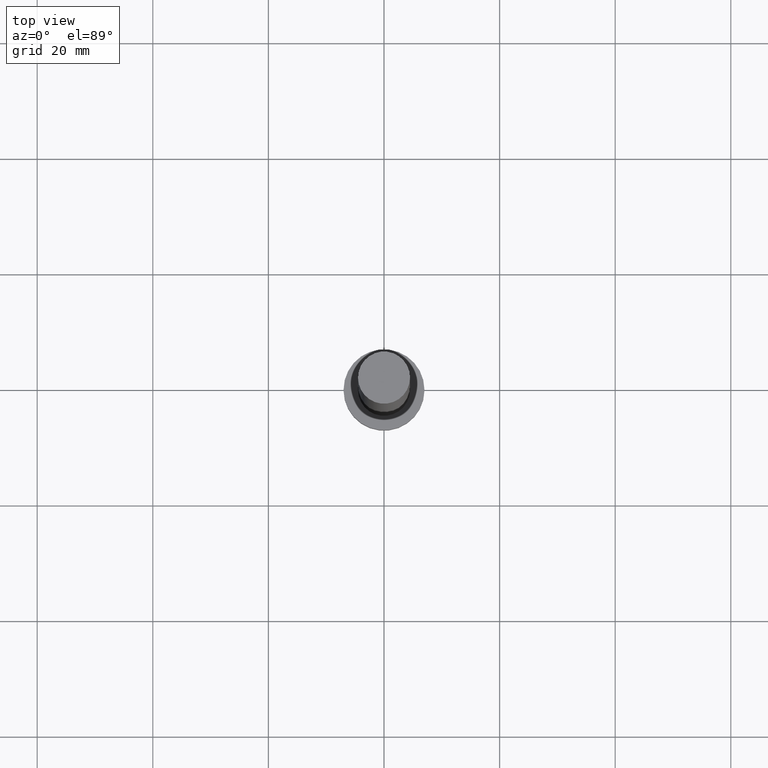
[diagram: clean part render]
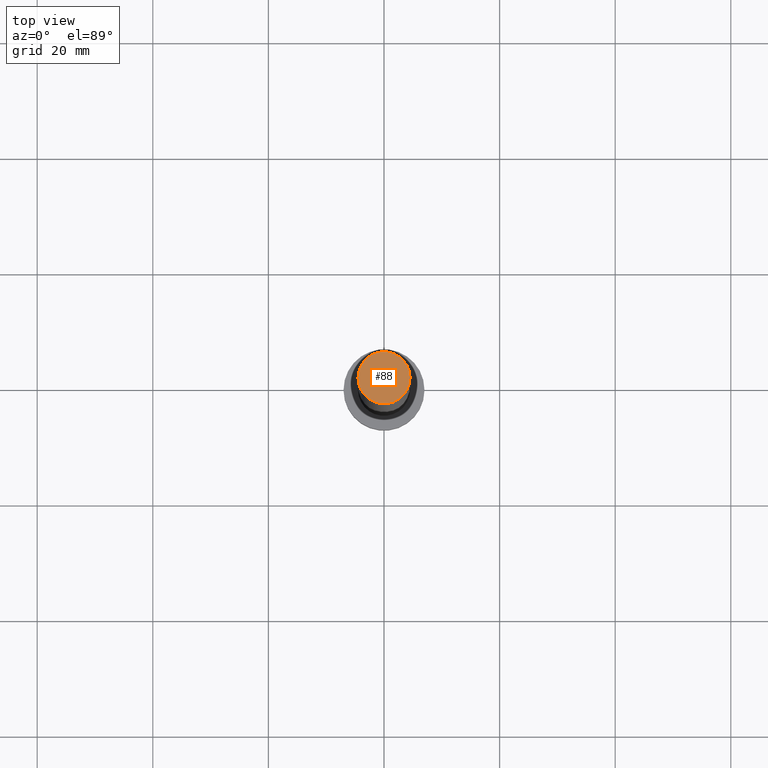
[diagram: same view with one face highlighted and labeled with its STEP entity id]
A machine part, top view. The second image highlights one B-rep face of the part: STEP entity #88.
In plain terms, the highlighted planar face has unit normal (0, 0, 1).
Its self-contained STEP definition (entity closure, byte-faithful):
#11 = EDGE_CURVE ( 'NONE', #104, #241, #99, .T. ) ;
#22 = CARTESIAN_POINT ( 'NONE',  ( 0.000000000000000000, 0.000000000000000000, 125.0000000000000000 ) ) ;
#30 = DIRECTION ( 'NONE',  ( 1.000000000000000000, 0.000000000000000000, 0.000000000000000000 ) ) ;
#31 = CARTESIAN_POINT ( 'NONE',  ( 0.000000000000000000, 0.000000000000000000, 125.0000000000000000 ) ) ;
#40 = DIRECTION ( 'NONE',  ( 1.000000000000000000, 0.000000000000000000, 0.000000000000000000 ) ) ;
#50 = DIRECTION ( 'NONE',  ( 0.000000000000000000, 0.000000000000000000, 1.000000000000000000 ) ) ;
#60 = ORIENTED_EDGE ( 'NONE', *, *, #114, .T. ) ;
#62 = DIRECTION ( 'NONE',  ( 0.000000000000000000, 0.000000000000000000, 1.000000000000000000 ) ) ;
#66 = CARTESIAN_POINT ( 'NONE',  ( -4.500000000000000888, 0.000000000000000000, 125.0000000000000000 ) ) ;
#70 = AXIS2_PLACEMENT_3D ( 'NONE', #31, #50, #191 ) ;
#80 = AXIS2_PLACEMENT_3D ( 'NONE', #128, #207, #30 ) ;
#86 = CIRCLE ( 'NONE', #80, 4.500000000000000888 ) ;
#87 = EDGE_LOOP ( 'NONE', ( #60, #237 ) ) ;
#88 = ADVANCED_FACE ( 'NONE', ( #116 ), #211, .T. ) ;
#90 = AXIS2_PLACEMENT_3D ( 'NONE', #22, #62, #40 ) ;
#99 = CIRCLE ( 'NONE', #90, 4.500000000000000888 ) ;
#104 = VERTEX_POINT ( 'NONE', #152 ) ;
#114 = EDGE_CURVE ( 'NONE', #241, #104, #86, .T. ) ;
#116 = FACE_OUTER_BOUND ( 'NONE', #87, .T. ) ;
#128 = CARTESIAN_POINT ( 'NONE',  ( 0.000000000000000000, 0.000000000000000000, 125.0000000000000000 ) ) ;
#152 = CARTESIAN_POINT ( 'NONE',  ( 4.500000000000000888, 5.510910596163089556E-16, 125.0000000000000000 ) ) ;
#191 = DIRECTION ( 'NONE',  ( 1.000000000000000000, 0.000000000000000000, -0.000000000000000000 ) ) ;
#207 = DIRECTION ( 'NONE',  ( 0.000000000000000000, 0.000000000000000000, 1.000000000000000000 ) ) ;
#211 = PLANE ( 'NONE',  #70 ) ;
#237 = ORIENTED_EDGE ( 'NONE', *, *, #11, .T. ) ;
#241 = VERTEX_POINT ( 'NONE', #66 ) ;